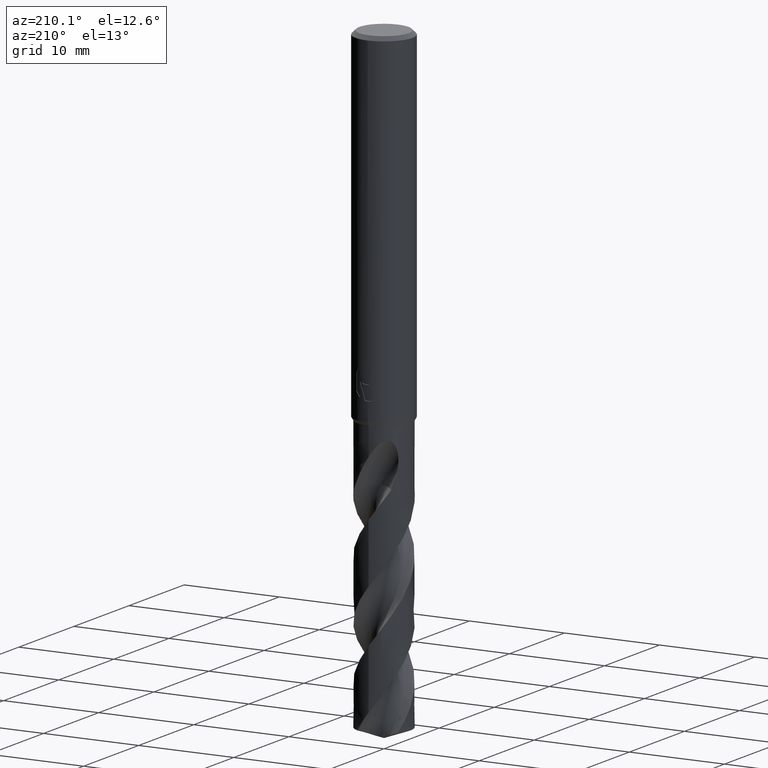
[diagram: clean part render]
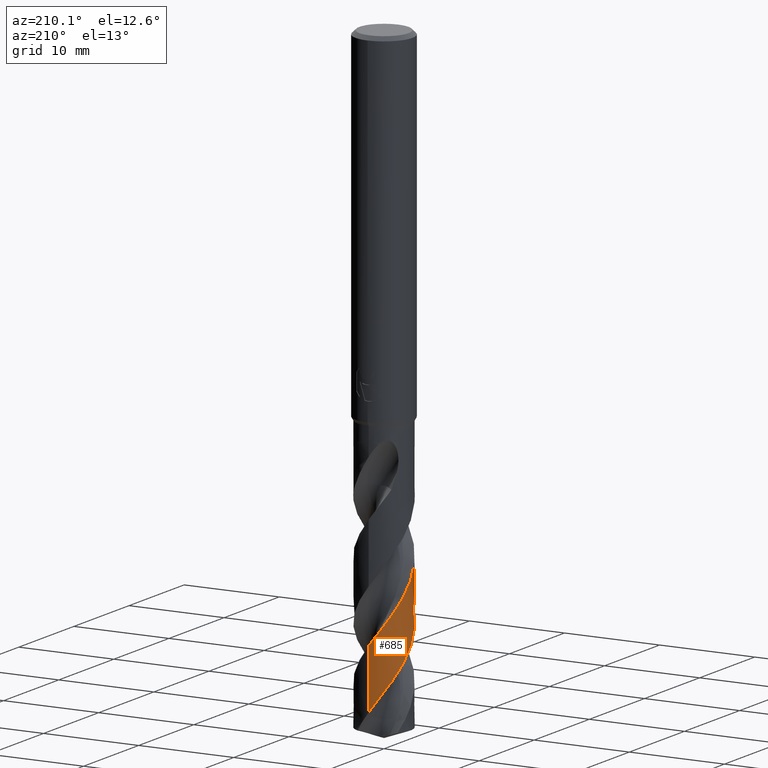
[diagram: same view with one face highlighted and labeled with its STEP entity id]
A machine part, auxiliary view. The second image highlights one B-rep face of the part: STEP entity #685.
In plain terms, the highlighted conical surface has half-angle 0 deg.
Its self-contained STEP definition (entity closure, byte-faithful):
#343=EDGE_CURVE('',#631,#711,#841,.T.);
#359=EDGE_CURVE('',#455,#623,#859,.T.);
#455=VERTEX_POINT('',#961);
#587=EDGE_CURVE('',#711,#455,#1105,.T.);
#623=VERTEX_POINT('',#1145);
#631=VERTEX_POINT('',#1153);
#685=ADVANCED_FACE('',(#1214),#1215,.T.);
#711=VERTEX_POINT('',#1242);
#731=EDGE_CURVE('',#623,#631,#1264,.T.);
#841=B_SPLINE_CURVE_WITH_KNOTS('',3,(#1864,#1865,#1866,#1867,#1868,#1869,#1870,#1871,#1872,#1873,#1874,#1875,#1876,#1877,#1878,#1879,#1880,#1881,#1882,#1883,#1884,#1885,#1886,#1887,#1888,#1889,#1890,#1891,#1892,#1893,#1894,#1895,#1896,#1897,#1898,#1899,#1900,#1901,#1902,#1903,#1904,#1905,#1906,#1907,#1908,#1909,#1910,#1911,#1912,#1913,#1914,#1915,#1916,#1917,#1918,#1919,#1920,#1921,#1922,#1923,#1924,#1925,#1926,#1927,#1928,#1929,#1930,#1931,#1932,#1933,#1934,#1935,#1936,#1937,#1938,#1939,#1940,#1941,#1942,#1943,#1944,#1945,#1946,#1947,#1948,#1949,#1950,#1951,#1952,#1953),.UNSPECIFIED.,.F.,.F.,(4,2,2,2,2,2,2,2,2,2,2,2,2,2,2,2,2,2,2,2,2,2,2,2,2,2,2,2,2,2,2,2,2,2,2,2,2,2,2,2,2,2,2,2,4),(0.0,0.108605759986239,0.168578979739064,0.211160721604494,0.513169224595069,0.618894623301516,0.686603574989269,0.750219645952928,0.835518369713695,0.885920160520182,1.02793390304412,1.35076908823656,1.59321563300854,1.82495748943316,1.9034848697878,2.34429767808718,3.12889301506507,5.51420416707672,5.60708854209568,6.65786965747591,7.03557386916732,7.75399572533773,9.16973361643464,9.36560392717781,10.9338929152472,11.3227073045956,12.5126224510856,13.2591913323775,14.6203091368013,15.0089661644953,16.1840633114926,16.9317899623918,18.2450687058968,18.6334545419206,20.202687370743,20.5911594586501,21.8381506581313,22.5779268841073,23.9762839749945,24.1716940337371,25.7413264346314,26.0592280904307,27.1782367344266,27.4589535036891,28.3009484968989),.UNSPECIFIED.);
#859=B_SPLINE_CURVE_WITH_KNOTS('',3,(#2066,#2067,#2068,#2069,#2070,#2071,#2072,#2073,#2074,#2075,#2076,#2077,#2078,#2079,#2080,#2081,#2082,#2083,#2084,#2085,#2086,#2087,#2088,#2089,#2090,#2091,#2092,#2093,#2094,#2095,#2096,#2097,#2098,#2099,#2100,#2101,#2102,#2103,#2104,#2105,#2106,#2107,#2108,#2109,#2110,#2111,#2112,#2113,#2114,#2115,#2116,#2117,#2118,#2119,#2120,#2121,#2122,#2123,#2124,#2125,#2126,#2127,#2128,#2129,#2130,#2131,#2132,#2133,#2134,#2135,#2136,#2137,#2138,#2139,#2140,#2141,#2142,#2143,#2144,#2145,#2146,#2147),.UNSPECIFIED.,.F.,.F.,(4,2,2,2,2,2,2,2,2,2,2,2,2,2,2,2,2,2,2,2,2,2,2,2,2,2,2,2,2,2,2,2,2,2,2,2,2,2,2,2,4),(0.0,0.82844719764806,2.40433304094489,2.50812888298905,4.2889600758962,4.38901889776026,6.1355044073233,6.24199106073299,7.89689292066843,8.18196395493552,9.18325673789758,9.89188857279896,9.99353403362321,11.7622142045823,11.864292271473,13.6242220526899,13.7284016362354,15.4270558151816,15.6737218247883,16.6398246399808,17.9490243764252,19.174086388838,19.3921373965643,20.3256583062966,20.7520595840708,21.3315582488114,22.2648227459887,22.6448286538948,22.8899198354149,23.1428124050433,25.6689416338645,25.9265849206089,26.5421271602677,27.1928022753031,27.6356874115801,27.7223129161938,27.7661931254233,27.8168538156707,27.9067499735102,28.0230133345902,28.1271620960893),.UNSPECIFIED.);
#961=CARTESIAN_POINT('',(-3.05723770502438E-015,2.79999293232475,-63.0739621307751));
#1105=LINE('',#4542,#4543);
#1145=CARTESIAN_POINT('',(-3.66239088911917E-010,-2.79994936100804,-51.3180359967202));
#1153=CARTESIAN_POINT('',(1.11412602791118E-011,-2.79992639372894,-45.1212612179477));
#1214=FACE_OUTER_BOUND('',#4895,.T.);
#1215=CONICAL_SURFACE('',#4896,2.79995,3.7063278738718E-006);
#1242=CARTESIAN_POINT('',(8.26703855232997E-015,2.79996996694075,-56.8776986631341));
#1264=LINE('',#5091,#5092);
#1864=CARTESIAN_POINT('',(1.94615694925855,-2.01295829811473,-42.2386));
#1865=CARTESIAN_POINT('',(1.93125081806019,-2.02736991250831,-42.2682764491579));
#1866=CARTESIAN_POINT('',(1.91614771772562,-2.04165217981694,-42.2979368400302));
#1867=CARTESIAN_POINT('',(1.89233672938128,-2.06366784394802,-42.3439132367299));
#1868=CARTESIAN_POINT('',(1.88380137076256,-2.07146262777551,-42.3602428760747));
#1869=CARTESIAN_POINT('',(1.86907338375561,-2.08474544810152,-42.3881425319075));
#1870=CARTESIAN_POINT('',(1.86292352669241,-2.09024296271859,-42.3997113419267));
#1871=CARTESIAN_POINT('',(1.81283408091538,-2.13462076057181,-42.4932582593985));
#1872=CARTESIAN_POINT('',(1.76788768296892,-2.17203929272721,-42.5729371389503));
#1873=CARTESIAN_POINT('',(1.70356265692424,-2.22212923754118,-42.6814739421968));
#1874=CARTESIAN_POINT('',(1.6866866764584,-2.2349675733049,-42.7094854465578));
#1875=CARTESIAN_POINT('',(1.65862023257109,-2.25581558107512,-42.7554138334336));
#1876=CARTESIAN_POINT('',(1.64758611648696,-2.26388753659054,-42.7733083605951));
#1877=CARTESIAN_POINT('',(1.62602419659507,-2.27941896414609,-42.8080033396172));
#1878=CARTESIAN_POINT('',(1.61551721670922,-2.28687793805828,-42.824786683237));
#1879=CARTESIAN_POINT('',(1.59077206953152,-2.30418844866599,-42.8640716985913));
#1880=CARTESIAN_POINT('',(1.57650170468024,-2.31397566153491,-42.8865424259406));
#1881=CARTESIAN_POINT('',(1.55365097637773,-2.32933797559429,-42.9223164152684));
#1882=CARTESIAN_POINT('',(1.54513632214327,-2.334994773443,-42.9356013555506));
#1883=CARTESIAN_POINT('',(1.51252842888022,-2.35640193515515,-42.9863509401571));
#1884=CARTESIAN_POINT('',(1.48852672606142,-2.37163610381895,-43.0235194279788));
#1885=CARTESIAN_POINT('',(1.40836919371469,-2.42080735754814,-43.1474781941695));
#1886=CARTESIAN_POINT('',(1.35179861928754,-2.45282744293773,-43.2343701104104));
#1887=CARTESIAN_POINT('',(1.25149839991867,-2.50512619686078,-43.3862522387046));
#1888=CARTESIAN_POINT('',(1.20792459292407,-2.52642465666761,-43.4515483187711));
#1889=CARTESIAN_POINT('',(1.12168664080901,-2.56583751229699,-43.5790759546722));
#1890=CARTESIAN_POINT('',(1.07899678872821,-2.5840831546514,-43.6414210989935));
#1891=CARTESIAN_POINT('',(1.02115037672657,-2.60711700280672,-43.7247205252499));
#1892=CARTESIAN_POINT('',(1.00644959524324,-2.61282734338723,-43.7457895332062));
#1893=CARTESIAN_POINT('',(0.909002814661639,-2.64973560215954,-43.8849837500249));
#1894=CARTESIAN_POINT('',(0.824801880823853,-2.67714558883862,-44.0028520185838));
#1895=CARTESIAN_POINT('',(0.58736733484061,-2.7421550852057,-44.3310560038336));
#1896=CARTESIAN_POINT('',(0.432301337753437,-2.77081221551638,-44.5413234848005));
#1897=CARTESIAN_POINT('',(-0.199688037521175,-2.83338947550752,-45.3913537431293));
#1898=CARTESIAN_POINT('',(-0.679749212231005,-2.75797585835273,-46.0194105246137));
#1899=CARTESIAN_POINT('',(-1.13542726907183,-2.55944763849282,-46.6834597726902));
#1900=CARTESIAN_POINT('',(-1.15242881018861,-2.55183768829331,-46.7083433352606));
#1901=CARTESIAN_POINT('',(-1.36083062743651,-2.45604883217945,-47.014873038757));
#1902=CARTESIAN_POINT('',(-1.5418132648444,-2.34667492492432,-47.2962760986244));
#1903=CARTESIAN_POINT('',(-1.76883220591311,-2.17177696534151,-47.6791718317615));
#1904=CARTESIAN_POINT('',(-1.82696917452832,-2.12310466772125,-47.7803394456276));
#1905=CARTESIAN_POINT('',(-1.98978269401807,-1.97514688144761,-48.0740728479555));
#1906=CARTESIAN_POINT('',(-2.08877111872598,-1.87014141333693,-48.2661924021915));
#1907=CARTESIAN_POINT('',(-2.3573949068064,-1.53717184463461,-48.8385579643068));
#1908=CARTESIAN_POINT('',(-2.50109602539604,-1.29032313474208,-49.2159624170112));
#1909=CARTESIAN_POINT('',(-2.61961907730003,-0.989354922738243,-49.6478745346782));
#1910=CARTESIAN_POINT('',(-2.63324692337205,-0.952490222065736,-49.7003493509724));
#1911=CARTESIAN_POINT('',(-2.7489533925757,-0.618012820678946,-50.1733704799265));
#1912=CARTESIAN_POINT('',(-2.80101290869379,-0.305253344627107,-50.5917414706985));
#1913=CARTESIAN_POINT('',(-2.79966361017892,0.0876944981345158,-51.1164180983973));
#1914=CARTESIAN_POINT('',(-2.79613139614853,0.16567230833471,-51.2205786649217));
#1915=CARTESIAN_POINT('',(-2.76860491883403,0.481174608170883,-51.6440978008402));
#1916=CARTESIAN_POINT('',(-2.71751679723197,0.715491293517679,-51.9624654754801));
#1917=CARTESIAN_POINT('',(-2.58689195894508,1.08176064787054,-52.4817527886075));
#1918=CARTESIAN_POINT('',(-2.52530325011825,1.21861407453687,-52.6814045395284));
#1919=CARTESIAN_POINT('',(-2.3214601636371,1.58906944027969,-53.2469942737192));
#1920=CARTESIAN_POINT('',(-2.15543777017483,1.80792490864795,-53.6104043991302));
#1921=CARTESIAN_POINT('',(-1.90448432484744,2.05397349710664,-54.0796582498707));
#1922=CARTESIAN_POINT('',(-1.84651241580459,2.10624105578348,-54.1838053408001));
#1923=CARTESIAN_POINT('',(-1.60486733912856,2.30646875827704,-54.6034481489829));
#1924=CARTESIAN_POINT('',(-1.40488969744318,2.43347412227399,-54.9180188219352));
#1925=CARTESIAN_POINT('',(-1.0553398819268,2.59781065545009,-55.4338375911496));
#1926=CARTESIAN_POINT('',(-0.914564792450323,2.65064087148312,-55.6338455853196));
#1927=CARTESIAN_POINT('',(-0.516889947466411,2.76443692052086,-56.1870996014998));
#1928=CARTESIAN_POINT('',(-0.25434365315802,2.80085156392006,-56.5381059955158));
#1929=CARTESIAN_POINT('',(0.0875803564880153,2.79968824790019,-56.994633507643));
#1930=CARTESIAN_POINT('',(0.165541065081788,2.79616073538563,-57.0987185243117));
#1931=CARTESIAN_POINT('',(0.557151155965212,2.7620141651242,-57.6241984671704));
#1932=CARTESIAN_POINT('',(0.864413657517808,2.68181217500129,-58.0431093404044));
#1933=CARTESIAN_POINT('',(1.22304449069067,2.51994544833901,-58.5684744031795));
#1934=CARTESIAN_POINT('',(1.29279323925915,2.48488208698094,-58.6726671074494));
#1935=CARTESIAN_POINT('',(1.5797791343876,2.32526743126871,-59.11184655446));
#1936=CARTESIAN_POINT('',(1.7814268756299,2.17468066846359,-59.4455705175799));
#1937=CARTESIAN_POINT('',(2.06657795580731,1.89506340622429,-59.9788292196181));
#1938=CARTESIAN_POINT('',(2.1642248694752,1.78272073647999,-60.1769810664135));
#1939=CARTESIAN_POINT('',(2.41923624740637,1.43737153594737,-60.7513001648936));
#1940=CARTESIAN_POINT('',(2.55120089405299,1.18756302033221,-61.1245453993787));
#1941=CARTESIAN_POINT('',(2.6567141779958,0.885065851161436,-61.5523343916189));
#1942=CARTESIAN_POINT('',(2.66886386388126,0.847724464733746,-61.6047733343307));
#1943=CARTESIAN_POINT('',(2.7714637906437,0.508297083318045,-62.0787667613922));
#1944=CARTESIAN_POINT('',(2.81110229025248,0.192999514721657,-62.4980597787502));
#1945=CARTESIAN_POINT('',(2.79452940475913,-0.186144519124917,-63.0048590759393));
#1946=CARTESIAN_POINT('',(2.78955384004183,-0.249860601663239,-63.0901726929371));
#1947=CARTESIAN_POINT('',(2.7572457780327,-0.53676735897579,-63.4761666036213));
#1948=CARTESIAN_POINT('',(2.70524604557844,-0.756491011453212,-63.7760608789497));
#1949=CARTESIAN_POINT('',(2.60794481354303,-1.02068347460402,-64.1519079305011));
#1950=CARTESIAN_POINT('',(2.58683157179571,-1.07306833823165,-64.2272519831666));
#1951=CARTESIAN_POINT('',(2.49610700191935,-1.27989444728559,-64.5286950923745));
#1952=CARTESIAN_POINT('',(2.41421946756854,-1.42831591045597,-64.7544948822612));
#1953=CARTESIAN_POINT('',(2.31958670581291,-1.56828489574313,-64.9808833440546));
#2066=CARTESIAN_POINT('',(1.36450386993745,2.44502130643593,-64.9808833440546));
#2067=CARTESIAN_POINT('',(1.21970786017105,2.52582731966721,-64.7600603145281));
#2068=CARTESIAN_POINT('',(1.06853234266741,2.59330988455934,-64.5375945314893));
#2069=CARTESIAN_POINT('',(0.617496854146465,2.74890330405951,-63.896893678866));
#2070=CARTESIAN_POINT('',(0.307112844983685,2.80058885098478,-63.4862740921443));
#2071=CARTESIAN_POINT('',(-0.0259539976526238,2.79994816056946,-63.0391185107948));
#2072=CARTESIAN_POINT('',(-0.0465125635478581,2.79968219142633,-63.0114846940945));
#2073=CARTESIAN_POINT('',(-0.420575750801285,2.79071168873991,-62.509216789588));
#2074=CARTESIAN_POINT('',(-0.76876079338975,2.71541793165761,-62.046806699951));
#2075=CARTESIAN_POINT('',(-1.11189492822252,2.56982714678252,-61.5458359399174));
#2076=CARTESIAN_POINT('',(-1.13006284129046,2.56189031527897,-61.5191696707768));
#2077=CARTESIAN_POINT('',(-1.46494686088092,2.4113176806216,-61.0259422959183));
#2078=CARTESIAN_POINT('',(-1.75213299079377,2.211400562831,-60.5714101020313));
#2079=CARTESIAN_POINT('',(-2.01033084827612,1.94908068711884,-60.0770337065442));
#2080=CARTESIAN_POINT('',(-2.02497152494986,1.9338653093843,-60.048630514886));
#2081=CARTESIAN_POINT('',(-2.26460635664079,1.67911450362472,-59.5787637213351));
#2082=CARTESIAN_POINT('',(-2.44583726444223,1.40208121934006,-59.1474113542472));
#2083=CARTESIAN_POINT('',(-2.59719976366846,1.04767763897077,-58.6308709001858));
#2084=CARTESIAN_POINT('',(-2.6178147216161,0.995040764144163,-58.5548166960964));
#2085=CARTESIAN_POINT('',(-2.70358708851136,0.754900066955263,-58.2125856108953));
#2086=CARTESIAN_POINT('',(-2.75042037316798,0.56105038671771,-57.9485526227156));
#2087=CARTESIAN_POINT('',(-2.79459967130632,0.223516144802119,-57.4949534714838));
#2088=CARTESIAN_POINT('',(-2.8022616399549,0.0828264748217802,-57.3075695918246));
#2089=CARTESIAN_POINT('',(-2.79896794693203,-0.077587419195127,-57.0919718154867));
#2090=CARTESIAN_POINT('',(-2.79833857916506,-0.0976943776818312,-57.0649159021308));
#2091=CARTESIAN_POINT('',(-2.78270566618217,-0.468714802026347,-56.5661247848629));
#2092=CARTESIAN_POINT('',(-2.70211098428901,-0.813266597943382,-56.1067119166041));
#2093=CARTESIAN_POINT('',(-2.55188710433799,-1.15242672187694,-55.6082958394841));
#2094=CARTESIAN_POINT('',(-2.54349667129628,-1.1708292412426,-55.5810933556071));
#2095=CARTESIAN_POINT('',(-2.38633309896041,-1.50583389005031,-55.0840507930331));
#2096=CARTESIAN_POINT('',(-2.1799702833805,-1.79152129564199,-54.6263867907842));
#2097=CARTESIAN_POINT('',(-1.9114586531403,-2.04610073234026,-54.1293093668731));
#2098=CARTESIAN_POINT('',(-1.89631710377791,-2.060141729456,-54.1015327296202));
#2099=CARTESIAN_POINT('',(-1.63102810650175,-2.30073448900123,-53.6204262761237));
#2100=CARTESIAN_POINT('',(-1.34231907294358,-2.48027172375589,-53.1780554353717));
#2101=CARTESIAN_POINT('',(-0.982978360259449,-2.62219331119517,-52.6597244336869));
#2102=CARTESIAN_POINT('',(-0.937025010887945,-2.63896319841193,-52.5939032222754));
#2103=CARTESIAN_POINT('',(-0.70868102690687,-2.71556982256573,-52.2707064769147));
#2104=CARTESIAN_POINT('',(-0.520641730108792,-2.75785942559287,-52.0153863415776));
#2105=CARTESIAN_POINT('',(-0.070003690213796,-2.811226566136,-51.4107488651196));
#2106=CARTESIAN_POINT('',(0.192050476577413,-2.80549856250444,-51.0612887776145));
#2107=CARTESIAN_POINT('',(0.690262314286891,-2.7244762451683,-50.3872927517319));
#2108=CARTESIAN_POINT('',(0.924558136574349,-2.65405467381097,-50.0654513800578));
#2109=CARTESIAN_POINT('',(1.18588122904773,-2.53677773101927,-49.6810445030026));
#2110=CARTESIAN_POINT('',(1.2248940253233,-2.51817217658335,-49.6228935111827));
#2111=CARTESIAN_POINT('',(1.42898009988146,-2.41496615315635,-49.3159850422472));
#2112=CARTESIAN_POINT('',(1.58603238371743,-2.31491696147551,-49.0691473644111));
#2113=CARTESIAN_POINT('',(1.79913076132561,-2.14709665679575,-48.7077437246472));
#2114=CARTESIAN_POINT('',(1.86345266584207,-2.09150904709825,-48.5945567874813));
#2115=CARTESIAN_POINT('',(2.00886523980891,-1.95382301319792,-48.3269544044226));
#2116=CARTESIAN_POINT('',(2.08748464590717,-1.86956130800148,-48.172082149308));
#2117=CARTESIAN_POINT('',(2.27825165755313,-1.63812365655449,-47.7698579434291));
#2118=CARTESIAN_POINT('',(2.38172509269441,-1.48376078541043,-47.5236248694334));
#2119=CARTESIAN_POINT('',(2.50497617875017,-1.25317536470829,-47.175397892624));
#2120=CARTESIAN_POINT('',(2.53789418303696,-1.18508558990767,-47.0747237063296));
#2121=CARTESIAN_POINT('',(2.58741323397283,-1.07111690408828,-46.9088325935933));
#2122=CARTESIAN_POINT('',(2.605637618527,-1.02598214101724,-46.8437850379621));
#2123=CARTESIAN_POINT('',(2.64022421570235,-0.933462872850537,-46.7114625580776));
#2124=CARTESIAN_POINT('',(2.65650603831768,-0.886064767069029,-46.6441595859856));
#2125=CARTESIAN_POINT('',(2.82150518216511,-0.360173633543812,-45.9055349984942));
#2126=CARTESIAN_POINT('',(2.8401832292768,0.148730144882881,-45.2532149892258));
#2127=CARTESIAN_POINT('',(2.71544680838684,0.684482123284127,-44.5143029915075));
#2128=CARTESIAN_POINT('',(2.70261443583878,0.733505445004968,-44.4459256848563));
#2129=CARTESIAN_POINT('',(2.65450512261697,0.898835369978098,-44.2145427199936));
#2130=CARTESIAN_POINT('',(2.61281395523722,1.01387842189225,-44.0519638303183));
#2131=CARTESIAN_POINT('',(2.51082539434075,1.24590429432236,-43.7191856343702));
#2132=CARTESIAN_POINT('',(2.45085559804661,1.36005187057445,-43.5539594203143));
#2133=CARTESIAN_POINT('',(2.33617070428715,1.54585749060526,-43.2544988165215));
#2134=CARTESIAN_POINT('',(2.28763746508656,1.61651631288578,-43.1324632323109));
#2135=CARTESIAN_POINT('',(2.2281078295433,1.69568319711846,-42.9826710743932));
#2136=CARTESIAN_POINT('',(2.21312255820558,1.71549443563394,-42.9443703383623));
#2137=CARTESIAN_POINT('',(2.17942643030845,1.75783175023451,-42.8670673631354));
#2138=CARTESIAN_POINT('',(2.1677598079443,1.77220582282261,-42.8413299786546));
#2139=CARTESIAN_POINT('',(2.14183413329042,1.80348547155219,-42.7863624240456));
#2140=CARTESIAN_POINT('',(2.12747751389952,1.82040949570789,-42.7572590093891));
#2141=CARTESIAN_POINT('',(2.08625493822996,1.86780388318206,-42.6773826768857));
#2142=CARTESIAN_POINT('',(2.05841262869017,1.89850027872921,-42.6274782433902));
#2143=CARTESIAN_POINT('',(1.99080965297492,1.96958657173877,-42.5153012814733));
#2144=CARTESIAN_POINT('',(1.95017279073446,2.00994168949892,-42.4540690376769));
#2145=CARTESIAN_POINT('',(1.86796142194128,2.08639988969252,-42.3410560346244));
#2146=CARTESIAN_POINT('',(1.82711334291991,2.12233118904273,-42.28921305376));
#2147=CARTESIAN_POINT('',(1.78417733937095,2.15783206083594,-42.2386));
#4542=CARTESIAN_POINT('',(-3.41310424478181E-016,2.79995,-51.4904416720273));
#4543=VECTOR('',#5441,1.0);
#4895=EDGE_LOOP('',(#5600,#5601,#5602,#5603));
#4896=AXIS2_PLACEMENT_3D('',#5604,#5605,#5606);
#5091=CARTESIAN_POINT('',(3.44456887598812E-016,-2.79995,-51.4904416720273));
#5092=VECTOR('',#5660,1.0);
#5441=DIRECTION('',(-4.538792663682E-022,3.70632787386332E-006,-0.999999999993132));
#5600=ORIENTED_EDGE('',*,*,#587,.T.);
#5601=ORIENTED_EDGE('',*,*,#359,.T.);
#5602=ORIENTED_EDGE('',*,*,#731,.T.);
#5603=ORIENTED_EDGE('',*,*,#343,.T.);
#5604=CARTESIAN_POINT('',(0.0,0.0,-51.4904416720273));
#5605=DIRECTION('',(0.0,-0.0,-1.0));
#5606=DIRECTION('',(0.0,1.0,0.0));
#5660=DIRECTION('',(-4.538792663682E-022,3.70632787386332E-006,0.999999999993132));